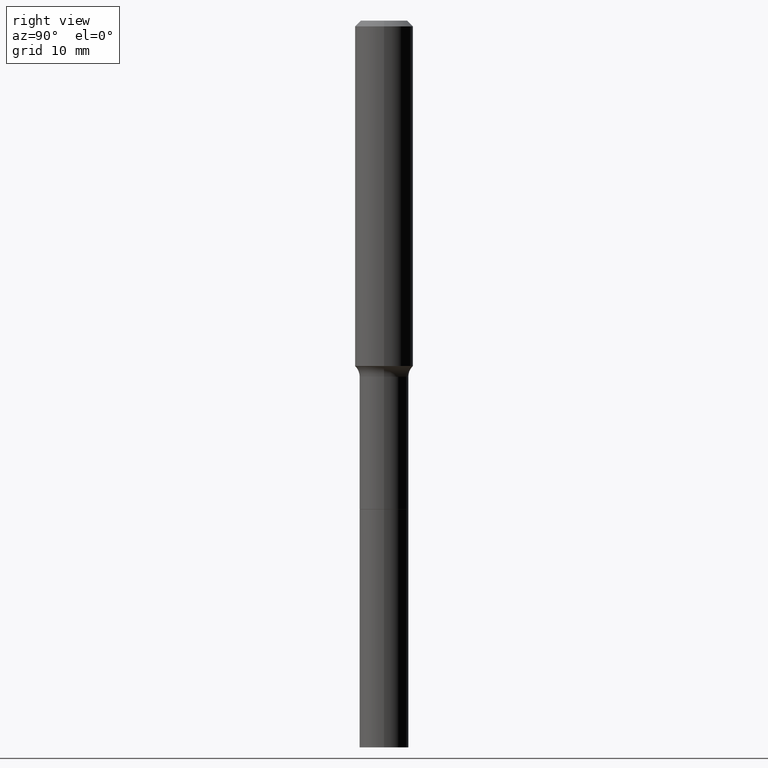
[diagram: clean part render]
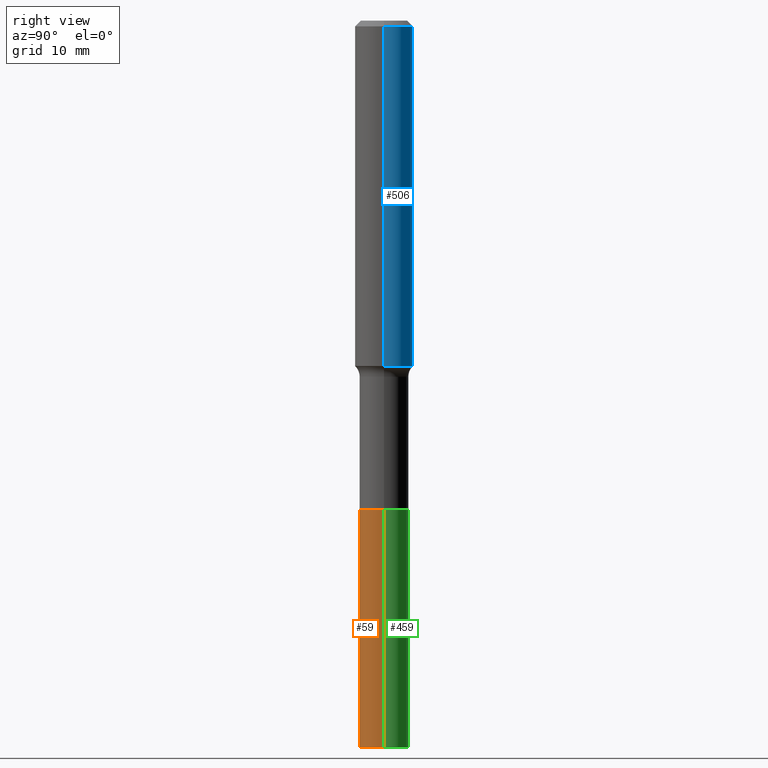
[diagram: same view with three faces highlighted in distinct colors, each labeled with its STEP entity id]
A machine part, right view with three faces highlighted in distinct colors.
Their STEP definitions:

[orange] entity #59 — the highlighted cylindrical surface (edge-blend (fillet) strip) has radius 3.3731 mm, axis along (-0, 0, 1).
#11 = VECTOR ( 'NONE', #81, 39.37007874015748143 ) ;
#43 = AXIS2_PLACEMENT_3D ( 'NONE', #160, #350, #401 ) ;
#54 = VERTEX_POINT ( 'NONE', #140 ) ;
#59 = ADVANCED_FACE ( 'NONE', ( #303 ), #300, .T. ) ;
#62 = ORIENTED_EDGE ( 'NONE', *, *, #245, .T. ) ;
#66 = DIRECTION ( 'NONE',  ( 1.000000000000000000, -6.982962677686265133E-15, 0.000000000000000000 ) ) ;
#77 = DIRECTION ( 'NONE',  ( -2.445468806185136877E-29, 3.491481338843145188E-15, 1.000000000000000000 ) ) ;
#81 = DIRECTION ( 'NONE',  ( -2.445468806185136877E-29, 3.491481338843145188E-15, 1.000000000000000000 ) ) ;
#101 = VERTEX_POINT ( 'NONE', #106 ) ;
#106 = CARTESIAN_POINT ( 'NONE',  ( -0.1328000000000002234, -1.055210155505163976E-14, -3.937000000000000277 ) ) ;
#110 = DIRECTION ( 'NONE',  ( -2.445468806185136597E-29, 3.491481338843145583E-15, 1.000000000000000000 ) ) ;
#130 = ORIENTED_EDGE ( 'NONE', *, *, #227, .F. ) ;
#132 = ORIENTED_EDGE ( 'NONE', *, *, #152, .T. ) ;
#140 = CARTESIAN_POINT ( 'NONE',  ( -0.1328000000000000014, -1.055210155505164292E-14, -2.648000000000000131 ) ) ;
#152 = EDGE_CURVE ( 'NONE', #377, #425, #486, .T. ) ;
#154 = VECTOR ( 'NONE', #77, 39.37007874015748143 ) ;
#160 = CARTESIAN_POINT ( 'NONE',  ( 9.627810689950883669E-29, -1.374596203102546341E-14, -3.937000000000000277 ) ) ;
#186 = EDGE_LOOP ( 'NONE', ( #130, #62, #132, #328 ) ) ;
#191 = DIRECTION ( 'NONE',  ( -2.445468806185136597E-29, 3.491481338843145583E-15, 1.000000000000000000 ) ) ;
#214 = CIRCLE ( 'NONE', #272, 0.1328000000000000014 ) ;
#219 = CARTESIAN_POINT ( 'NONE',  ( 0.1328000000000000014, -1.017278002885338791E-14, -2.648000000000000131 ) ) ;
#227 = EDGE_CURVE ( 'NONE', #101, #54, #270, .T. ) ;
#245 = EDGE_CURVE ( 'NONE', #101, #377, #364, .T. ) ;
#260 = CARTESIAN_POINT ( 'NONE',  ( 6.475601398778242345E-29, -9.245442585256650509E-15, -2.648000000000000131 ) ) ;
#265 = CARTESIAN_POINT ( 'NONE',  ( 0.1328000000000002234, -1.467329947462220082E-14, -3.937000000000000277 ) ) ;
#270 = LINE ( 'NONE', #279, #11 ) ;
#272 = AXIS2_PLACEMENT_3D ( 'NONE', #378, #110, #336 ) ;
#279 = CARTESIAN_POINT ( 'NONE',  ( -0.1328000000000001124, -8.301841832167235678E-15, -2.648000000000000131 ) ) ;
#300 = CYLINDRICAL_SURFACE ( 'NONE', #338, 0.1328000000000001124 ) ;
#303 = FACE_OUTER_BOUND ( 'NONE', #186, .T. ) ;
#328 = ORIENTED_EDGE ( 'NONE', *, *, #433, .F. ) ;
#336 = DIRECTION ( 'NONE',  ( 1.000000000000000000, -6.982962677686271444E-15, 0.000000000000000000 ) ) ;
#338 = AXIS2_PLACEMENT_3D ( 'NONE', #260, #191, #66 ) ;
#350 = DIRECTION ( 'NONE',  ( -2.445468806185136597E-29, 3.491481338843145583E-15, 1.000000000000000000 ) ) ;
#364 = CIRCLE ( 'NONE', #43, 0.1328000000000002234 ) ;
#377 = VERTEX_POINT ( 'NONE', #265 ) ;
#378 = CARTESIAN_POINT ( 'NONE',  ( 6.475601398778242345E-29, -9.245442585256650509E-15, -2.648000000000000131 ) ) ;
#394 = CARTESIAN_POINT ( 'NONE',  ( 0.1328000000000001124, -1.017278002885338791E-14, -2.648000000000000131 ) ) ;
#401 = DIRECTION ( 'NONE',  ( 1.000000000000000000, -6.982962677686259611E-15, 0.000000000000000000 ) ) ;
#425 = VERTEX_POINT ( 'NONE', #219 ) ;
#433 = EDGE_CURVE ( 'NONE', #54, #425, #214, .T. ) ;
#486 = LINE ( 'NONE', #394, #154 ) ;

[blue] entity #506 — the highlighted cylindrical surface (edge-blend (fillet) strip) has radius 4.0005 mm, axis along (-0, 0, 1).
#1 = DIRECTION ( 'NONE',  ( 1.000000000000000000, -6.982962677686271444E-15, 0.000000000000000000 ) ) ;
#22 = DIRECTION ( 'NONE',  ( 1.000000000000000000, -6.982962677686267499E-15, 4.876176775795936353E-29 ) ) ;
#46 = EDGE_CURVE ( 'NONE', #494, #366, #508, .T. ) ;
#47 = ORIENTED_EDGE ( 'NONE', *, *, #510, .T. ) ;
#61 = VECTOR ( 'NONE', #240, 39.37007874015748143 ) ;
#70 = ORIENTED_EDGE ( 'NONE', *, *, #46, .F. ) ;
#100 = LINE ( 'NONE', #466, #408 ) ;
#108 = DIRECTION ( 'NONE',  ( -2.445468806185136597E-29, 3.491481338843145583E-15, 1.000000000000000000 ) ) ;
#109 = EDGE_LOOP ( 'NONE', ( #416, #47, #70, #213 ) ) ;
#156 = CARTESIAN_POINT ( 'NONE',  ( 0.1575000000000000844, -1.099816621735587677E-15, 7.679978421878603638E-30 ) ) ;
#166 = EDGE_CURVE ( 'NONE', #365, #494, #447, .T. ) ;
#187 = EDGE_CURVE ( 'NONE', #365, #460, #241, .T. ) ;
#208 = AXIS2_PLACEMENT_3D ( 'NONE', #471, #108, #22 ) ;
#213 = ORIENTED_EDGE ( 'NONE', *, *, #166, .F. ) ;
#229 = CARTESIAN_POINT ( 'NONE',  ( 0.1575000000000000011, -1.209798283909146741E-15, -0.03150000000000022227 ) ) ;
#230 = DIRECTION ( 'NONE',  ( 1.000000000000000000, -6.982962677686264344E-15, 0.000000000000000000 ) ) ;
#240 = DIRECTION ( 'NONE',  ( -2.445468806185136877E-29, 3.491481338843145188E-15, 1.000000000000000000 ) ) ;
#241 = CIRCLE ( 'NONE', #496, 0.1575000000000002232 ) ;
#277 = AXIS2_PLACEMENT_3D ( 'NONE', #502, #383, #230 ) ;
#286 = CARTESIAN_POINT ( 'NONE',  ( 0.1575000000000002232, -7.632377001497823742E-15, -1.870999654813194413 ) ) ;
#306 = CARTESIAN_POINT ( 'NONE',  ( -0.1575000000000002232, -5.413455570940076292E-15, -1.870999654813194413 ) ) ;
#334 = DIRECTION ( 'NONE',  ( -2.445468806185136877E-29, 3.491481338843145188E-15, 1.000000000000000000 ) ) ;
#365 = VERTEX_POINT ( 'NONE', #286 ) ;
#366 = VERTEX_POINT ( 'NONE', #415 ) ;
#383 = DIRECTION ( 'NONE',  ( -2.445468806185136597E-29, 3.491481338843145583E-15, 1.000000000000000000 ) ) ;
#384 = CYLINDRICAL_SURFACE ( 'NONE', #208, 0.1575000000000000844 ) ;
#391 = CARTESIAN_POINT ( 'NONE',  ( 4.575471292228825010E-29, -6.532560379762235473E-15, -1.870999654813194413 ) ) ;
#408 = VECTOR ( 'NONE', #334, 39.37007874015748143 ) ;
#415 = CARTESIAN_POINT ( 'NONE',  ( -0.1575000000000000011, -2.202166212145738679E-15, -0.03150000000000022227 ) ) ;
#416 = ORIENTED_EDGE ( 'NONE', *, *, #187, .T. ) ;
#443 = DIRECTION ( 'NONE',  ( -2.445468806185136597E-29, 3.491481338843145583E-15, 1.000000000000000000 ) ) ;
#447 = LINE ( 'NONE', #156, #61 ) ;
#460 = VERTEX_POINT ( 'NONE', #306 ) ;
#464 = FACE_OUTER_BOUND ( 'NONE', #109, .T. ) ;
#466 = CARTESIAN_POINT ( 'NONE',  ( -0.1575000000000000844, 1.119104808822158392E-15, -7.747322767151481189E-30 ) ) ;
#471 = CARTESIAN_POINT ( 'NONE',  ( 0.000000000000000000, 0.000000000000000000, 0.000000000000000000 ) ) ;
#494 = VERTEX_POINT ( 'NONE', #229 ) ;
#496 = AXIS2_PLACEMENT_3D ( 'NONE', #391, #443, #1 ) ;
#502 = CARTESIAN_POINT ( 'NONE',  ( 7.703226739483234853E-31, -1.099816621735598648E-16, -0.03150000000000022227 ) ) ;
#506 = ADVANCED_FACE ( 'NONE', ( #464 ), #384, .T. ) ;
#508 = CIRCLE ( 'NONE', #277, 0.1575000000000000011 ) ;
#510 = EDGE_CURVE ( 'NONE', #460, #366, #100, .T. ) ;

[green] entity #459 — the highlighted cylindrical surface (edge-blend (fillet) strip) has radius 3.3731 mm, axis along (-0, 0, 1).
#11 = VECTOR ( 'NONE', #81, 39.37007874015748143 ) ;
#24 = EDGE_CURVE ( 'NONE', #377, #101, #141, .T. ) ;
#29 = CARTESIAN_POINT ( 'NONE',  ( 9.627810689950883669E-29, -1.374596203102546341E-14, -3.937000000000000277 ) ) ;
#54 = VERTEX_POINT ( 'NONE', #140 ) ;
#75 = AXIS2_PLACEMENT_3D ( 'NONE', #29, #181, #98 ) ;
#77 = DIRECTION ( 'NONE',  ( -2.445468806185136877E-29, 3.491481338843145188E-15, 1.000000000000000000 ) ) ;
#81 = DIRECTION ( 'NONE',  ( -2.445468806185136877E-29, 3.491481338843145188E-15, 1.000000000000000000 ) ) ;
#88 = ORIENTED_EDGE ( 'NONE', *, *, #295, .F. ) ;
#98 = DIRECTION ( 'NONE',  ( 1.000000000000000000, -6.982962677686259611E-15, 0.000000000000000000 ) ) ;
#101 = VERTEX_POINT ( 'NONE', #106 ) ;
#106 = CARTESIAN_POINT ( 'NONE',  ( -0.1328000000000002234, -1.055210155505163976E-14, -3.937000000000000277 ) ) ;
#140 = CARTESIAN_POINT ( 'NONE',  ( -0.1328000000000000014, -1.055210155505164292E-14, -2.648000000000000131 ) ) ;
#141 = CIRCLE ( 'NONE', #75, 0.1328000000000002234 ) ;
#144 = DIRECTION ( 'NONE',  ( -2.445468806185136597E-29, 3.491481338843145583E-15, 1.000000000000000000 ) ) ;
#152 = EDGE_CURVE ( 'NONE', #377, #425, #486, .T. ) ;
#154 = VECTOR ( 'NONE', #77, 39.37007874015748143 ) ;
#181 = DIRECTION ( 'NONE',  ( -2.445468806185136597E-29, 3.491481338843145583E-15, 1.000000000000000000 ) ) ;
#196 = DIRECTION ( 'NONE',  ( -2.445468806185136597E-29, 3.491481338843145583E-15, 1.000000000000000000 ) ) ;
#217 = CYLINDRICAL_SURFACE ( 'NONE', #307, 0.1328000000000001124 ) ;
#219 = CARTESIAN_POINT ( 'NONE',  ( 0.1328000000000000014, -1.017278002885338791E-14, -2.648000000000000131 ) ) ;
#227 = EDGE_CURVE ( 'NONE', #101, #54, #270, .T. ) ;
#242 = AXIS2_PLACEMENT_3D ( 'NONE', #349, #196, #442 ) ;
#248 = ORIENTED_EDGE ( 'NONE', *, *, #227, .T. ) ;
#254 = ORIENTED_EDGE ( 'NONE', *, *, #152, .F. ) ;
#265 = CARTESIAN_POINT ( 'NONE',  ( 0.1328000000000002234, -1.467329947462220082E-14, -3.937000000000000277 ) ) ;
#270 = LINE ( 'NONE', #279, #11 ) ;
#279 = CARTESIAN_POINT ( 'NONE',  ( -0.1328000000000001124, -8.301841832167235678E-15, -2.648000000000000131 ) ) ;
#295 = EDGE_CURVE ( 'NONE', #425, #54, #472, .T. ) ;
#301 = CARTESIAN_POINT ( 'NONE',  ( 6.475601398778242345E-29, -9.245442585256650509E-15, -2.648000000000000131 ) ) ;
#307 = AXIS2_PLACEMENT_3D ( 'NONE', #301, #144, #501 ) ;
#326 = EDGE_LOOP ( 'NONE', ( #428, #248, #88, #254 ) ) ;
#349 = CARTESIAN_POINT ( 'NONE',  ( 6.475601398778242345E-29, -9.245442585256650509E-15, -2.648000000000000131 ) ) ;
#377 = VERTEX_POINT ( 'NONE', #265 ) ;
#394 = CARTESIAN_POINT ( 'NONE',  ( 0.1328000000000001124, -1.017278002885338791E-14, -2.648000000000000131 ) ) ;
#425 = VERTEX_POINT ( 'NONE', #219 ) ;
#428 = ORIENTED_EDGE ( 'NONE', *, *, #24, .T. ) ;
#442 = DIRECTION ( 'NONE',  ( 1.000000000000000000, -6.982962677686271444E-15, 0.000000000000000000 ) ) ;
#459 = ADVANCED_FACE ( 'NONE', ( #511 ), #217, .T. ) ;
#472 = CIRCLE ( 'NONE', #242, 0.1328000000000000014 ) ;
#486 = LINE ( 'NONE', #394, #154 ) ;
#501 = DIRECTION ( 'NONE',  ( 1.000000000000000000, -6.982962677686265133E-15, 0.000000000000000000 ) ) ;
#511 = FACE_OUTER_BOUND ( 'NONE', #326, .T. ) ;